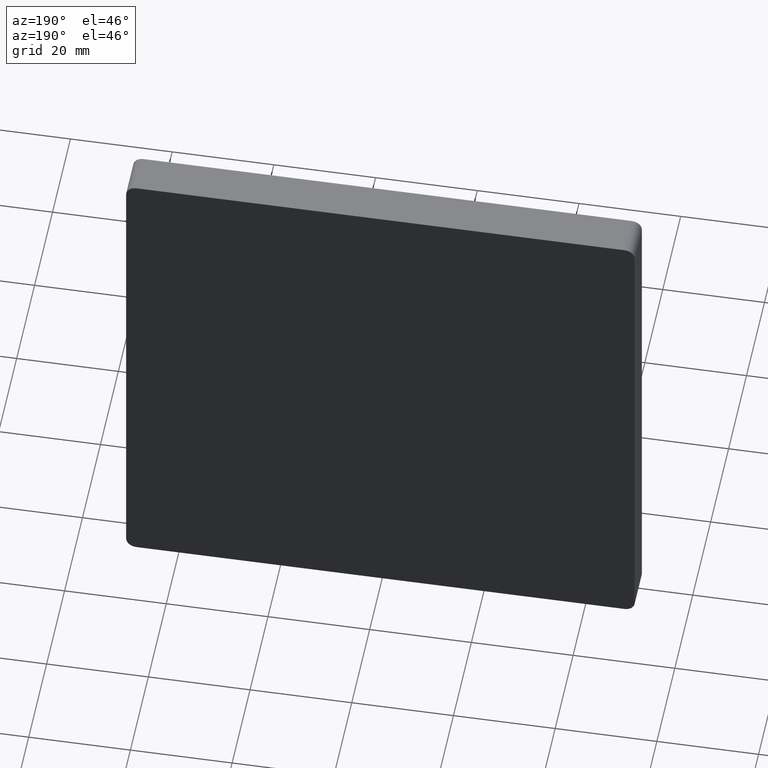
[diagram: clean part render]
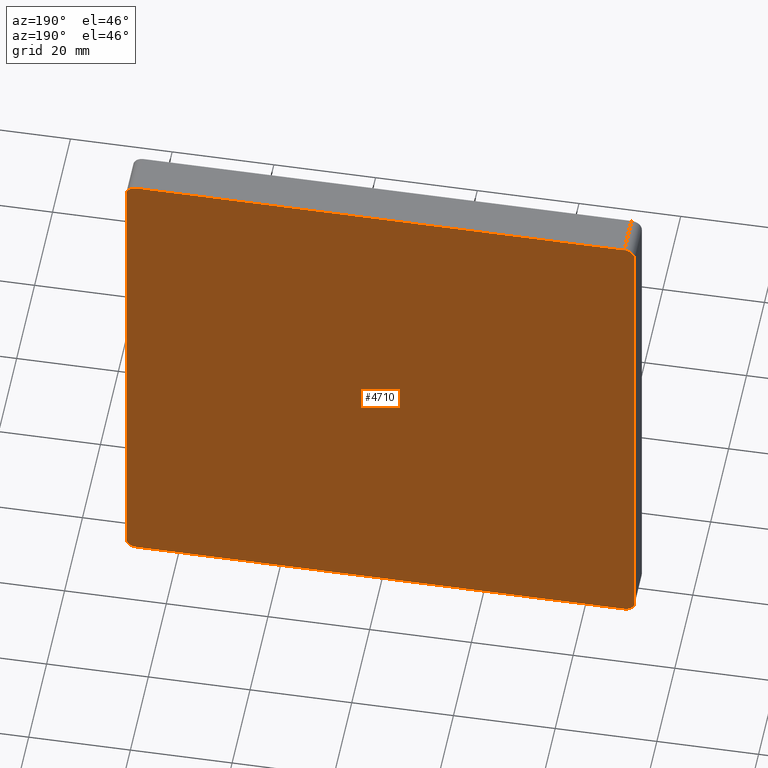
[diagram: same view with one face highlighted and labeled with its STEP entity id]
A machine part, auxiliary view. The second image highlights one B-rep face of the part: STEP entity #4710.
In plain terms, the highlighted planar face has unit normal (0, 1, 0).
Its self-contained STEP definition (entity closure, byte-faithful):
#172 = CIRCLE ( 'NONE', #5600, 2.000000000000001776 ) ;
#190 = EDGE_LOOP ( 'NONE', ( #11600, #7535, #8337, #2923, #429, #9699, #7071, #10070 ) ) ;
#429 = ORIENTED_EDGE ( 'NONE', *, *, #4591, .T. ) ;
#770 = DIRECTION ( 'NONE',  ( -2.775557561562891351E-16, -0.000000000000000000, -1.000000000000000000 ) ) ;
#1147 = CARTESIAN_POINT ( 'NONE',  ( -47.99999999999998579, 8.000000000000000000, 50.00000000000000711 ) ) ;
#1251 = VERTEX_POINT ( 'NONE', #4154 ) ;
#1422 = CIRCLE ( 'NONE', #8844, 2.000000000000001776 ) ;
#1664 = VECTOR ( 'NONE', #2669, 1000.000000000000000 ) ;
#1785 = DIRECTION ( 'NONE',  ( 0.000000000000000000, 1.000000000000000000, 0.000000000000000000 ) ) ;
#1814 = DIRECTION ( 'NONE',  ( 0.000000000000000000, 0.000000000000000000, 1.000000000000000000 ) ) ;
#2088 = CARTESIAN_POINT ( 'NONE',  ( 48.00000000000001421, 8.000000000000000000, 48.00000000000000711 ) ) ;
#2321 = EDGE_CURVE ( 'NONE', #6957, #1251, #172, .T. ) ;
#2476 = AXIS2_PLACEMENT_3D ( 'NONE', #8746, #3071, #1814 ) ;
#2544 = AXIS2_PLACEMENT_3D ( 'NONE', #2088, #9126, #5523 ) ;
#2644 = CARTESIAN_POINT ( 'NONE',  ( 47.99999999999998579, 8.000000000000000000, -47.99999999999999289 ) ) ;
#2669 = DIRECTION ( 'NONE',  ( 1.000000000000000000, 0.000000000000000000, 0.000000000000000000 ) ) ;
#2923 = ORIENTED_EDGE ( 'NONE', *, *, #3803, .T. ) ;
#3050 = CARTESIAN_POINT ( 'NONE',  ( 49.99999999999998579, 8.000000000000000000, -49.99999999999999289 ) ) ;
#3071 = DIRECTION ( 'NONE',  ( 0.000000000000000000, 1.000000000000000000, 0.000000000000000000 ) ) ;
#3266 = CARTESIAN_POINT ( 'NONE',  ( 0.000000000000000000, 8.000000000000000000, 0.000000000000000000 ) ) ;
#3422 = PLANE ( 'NONE',  #3616 ) ;
#3616 = AXIS2_PLACEMENT_3D ( 'NONE', #3266, #6752, #14880 ) ;
#3803 = EDGE_CURVE ( 'NONE', #13568, #11091, #1422, .T. ) ;
#3981 = CARTESIAN_POINT ( 'NONE',  ( -49.99999999999998579, 8.000000000000000000, 50.00000000000000711 ) ) ;
#4154 = CARTESIAN_POINT ( 'NONE',  ( 47.99999999999995737, 8.000000000000000000, -49.99999999999999289 ) ) ;
#4591 = EDGE_CURVE ( 'NONE', #11091, #4870, #14779, .T. ) ;
#4710 = ADVANCED_FACE ( 'NONE', ( #11143 ), #3422, .T. ) ;
#4831 = VERTEX_POINT ( 'NONE', #13339 ) ;
#4859 = VERTEX_POINT ( 'NONE', #11246 ) ;
#4870 = VERTEX_POINT ( 'NONE', #7531 ) ;
#5148 = EDGE_CURVE ( 'NONE', #4831, #4859, #10958, .T. ) ;
#5523 = DIRECTION ( 'NONE',  ( 0.000000000000000000, 0.000000000000000000, 1.000000000000000000 ) ) ;
#5600 = AXIS2_PLACEMENT_3D ( 'NONE', #2644, #9617, #9665 ) ;
#6359 = DIRECTION ( 'NONE',  ( 1.387778780781445676E-16, 0.000000000000000000, 1.000000000000000000 ) ) ;
#6501 = EDGE_CURVE ( 'NONE', #1251, #13568, #14926, .T. ) ;
#6752 = DIRECTION ( 'NONE',  ( 0.000000000000000000, 1.000000000000000000, 0.000000000000000000 ) ) ;
#6957 = VERTEX_POINT ( 'NONE', #10345 ) ;
#7071 = ORIENTED_EDGE ( 'NONE', *, *, #11620, .T. ) ;
#7499 = LINE ( 'NONE', #3050, #13284 ) ;
#7531 = CARTESIAN_POINT ( 'NONE',  ( -49.99999999999998579, 8.000000000000000000, 48.00000000000001421 ) ) ;
#7535 = ORIENTED_EDGE ( 'NONE', *, *, #2321, .T. ) ;
#8098 = VECTOR ( 'NONE', #6359, 1000.000000000000000 ) ;
#8191 = LINE ( 'NONE', #3981, #1664 ) ;
#8337 = ORIENTED_EDGE ( 'NONE', *, *, #6501, .T. ) ;
#8746 = CARTESIAN_POINT ( 'NONE',  ( -47.99999999999998579, 8.000000000000000000, 48.00000000000000711 ) ) ;
#8844 = AXIS2_PLACEMENT_3D ( 'NONE', #9811, #1785, #9857 ) ;
#8907 = CIRCLE ( 'NONE', #2476, 2.000000000000001776 ) ;
#9126 = DIRECTION ( 'NONE',  ( 0.000000000000000000, 1.000000000000000000, 0.000000000000000000 ) ) ;
#9469 = CARTESIAN_POINT ( 'NONE',  ( -50.00000000000000000, 8.000000000000000000, -47.99999999999998579 ) ) ;
#9617 = DIRECTION ( 'NONE',  ( 0.000000000000000000, 1.000000000000000000, 0.000000000000000000 ) ) ;
#9665 = DIRECTION ( 'NONE',  ( 0.000000000000000000, 0.000000000000000000, 1.000000000000000000 ) ) ;
#9699 = ORIENTED_EDGE ( 'NONE', *, *, #12087, .T. ) ;
#9811 = CARTESIAN_POINT ( 'NONE',  ( -48.00000000000000000, 8.000000000000000000, -47.99999999999998579 ) ) ;
#9857 = DIRECTION ( 'NONE',  ( 0.000000000000000000, 0.000000000000000000, 1.000000000000000000 ) ) ;
#10070 = ORIENTED_EDGE ( 'NONE', *, *, #5148, .T. ) ;
#10125 = CARTESIAN_POINT ( 'NONE',  ( -50.00000000000000000, 8.000000000000000000, -49.99999999999998579 ) ) ;
#10345 = CARTESIAN_POINT ( 'NONE',  ( 49.99999999999998579, 8.000000000000000000, -47.99999999999999289 ) ) ;
#10958 = CIRCLE ( 'NONE', #2544, 2.000000000000001776 ) ;
#11091 = VERTEX_POINT ( 'NONE', #9469 ) ;
#11143 = FACE_OUTER_BOUND ( 'NONE', #190, .T. ) ;
#11246 = CARTESIAN_POINT ( 'NONE',  ( 50.00000000000001421, 8.000000000000000000, 48.00000000000000711 ) ) ;
#11392 = DIRECTION ( 'NONE',  ( -1.000000000000000000, -0.000000000000000000, 6.938893903907229610E-17 ) ) ;
#11600 = ORIENTED_EDGE ( 'NONE', *, *, #13972, .T. ) ;
#11620 = EDGE_CURVE ( 'NONE', #14640, #4831, #8191, .T. ) ;
#12047 = CARTESIAN_POINT ( 'NONE',  ( -48.00000000000000000, 8.000000000000000000, -49.99999999999998579 ) ) ;
#12087 = EDGE_CURVE ( 'NONE', #4870, #14640, #8907, .T. ) ;
#12760 = VECTOR ( 'NONE', #11392, 1000.000000000000000 ) ;
#13284 = VECTOR ( 'NONE', #770, 1000.000000000000000 ) ;
#13339 = CARTESIAN_POINT ( 'NONE',  ( 48.00000000000001421, 8.000000000000000000, 50.00000000000000711 ) ) ;
#13568 = VERTEX_POINT ( 'NONE', #12047 ) ;
#13972 = EDGE_CURVE ( 'NONE', #4859, #6957, #7499, .T. ) ;
#14343 = CARTESIAN_POINT ( 'NONE',  ( -50.00000000000000000, 8.000000000000000000, -49.99999999999998579 ) ) ;
#14640 = VERTEX_POINT ( 'NONE', #1147 ) ;
#14779 = LINE ( 'NONE', #14343, #8098 ) ;
#14880 = DIRECTION ( 'NONE',  ( 0.000000000000000000, -0.000000000000000000, 1.000000000000000000 ) ) ;
#14926 = LINE ( 'NONE', #10125, #12760 ) ;